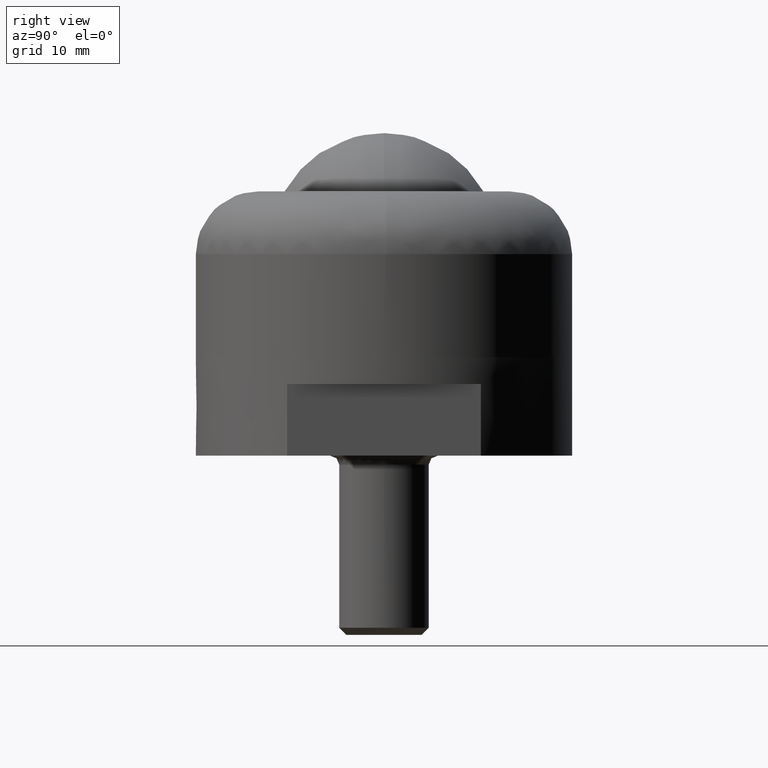
[diagram: clean part render]
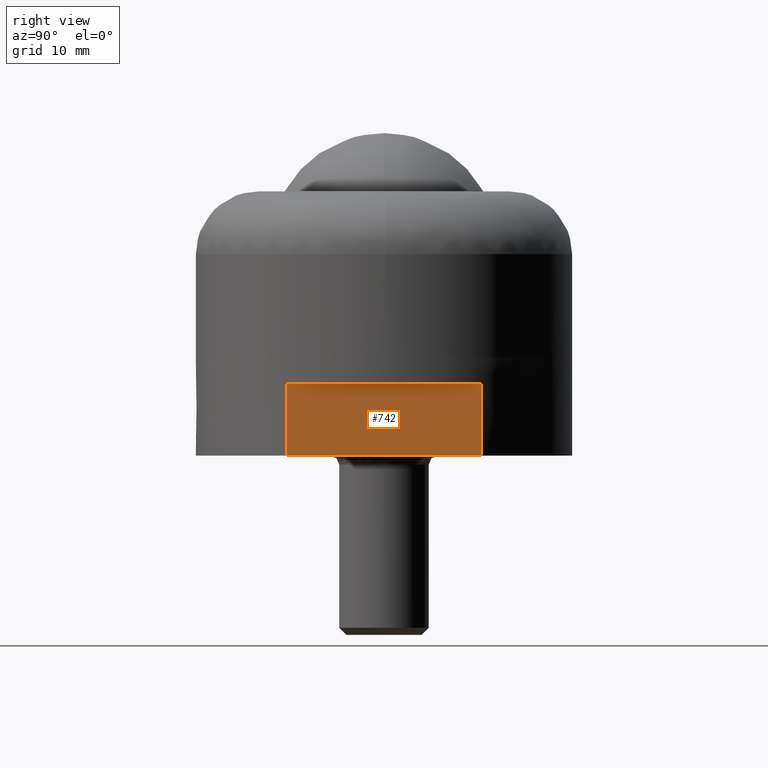
[diagram: same view with one face highlighted and labeled with its STEP entity id]
A machine part, right view. The second image highlights one B-rep face of the part: STEP entity #742.
In plain terms, the highlighted face is a freeform B-spline surface patch.
Its self-contained STEP definition (entity closure, byte-faithful):
#646=CARTESIAN_POINT('',(18.0,10.816653826392120,-11.0));
#647=VERTEX_POINT('',#646);
#667=CARTESIAN_POINT('',(18.0,-10.816653826392100,-11.0));
#668=VERTEX_POINT('',#667);
#669=CARTESIAN_POINT('',(18.0,10.816653826392120,-11.0));
#670=CARTESIAN_POINT('',(18.0,-10.816653826392100,-11.0));
#671=QUASI_UNIFORM_CURVE('',1,(#669,#670),.UNSPECIFIED.,.F.,.U.);
#672=EDGE_CURVE('',#647,#668,#671,.T.);
#715=CARTESIAN_POINT('',(18.0,-11.897237501719131,-2.600400015505436));
#716=CARTESIAN_POINT('',(18.0,-11.897237501719131,-11.399600199071180));
#717=CARTESIAN_POINT('',(18.0,11.897238081969670,-2.600400015505436));
#718=CARTESIAN_POINT('',(18.0,11.897238081969670,-11.399600199071180));
#719=B_SPLINE_SURFACE_WITH_KNOTS('',1,1,((#715,#717),(#716,#718)),.UNSPECIFIED.,.F.,.F.,.U.,(2,2),(2,2),(0.0,8.799200183565739),(0.0,23.794475583688801),.UNSPECIFIED.);
#720=ORIENTED_EDGE('',*,*,#672,.F.);
#721=CARTESIAN_POINT('',(18.0,10.816653826392100,-2.999999999999890));
#722=VERTEX_POINT('',#721);
#723=CARTESIAN_POINT('',(18.0,10.816653826392100,-2.999999999999890));
#724=CARTESIAN_POINT('',(18.0,10.816653826392120,-11.0));
#725=QUASI_UNIFORM_CURVE('',1,(#723,#724),.UNSPECIFIED.,.F.,.U.);
#726=EDGE_CURVE('',#722,#647,#725,.T.);
#727=ORIENTED_EDGE('',*,*,#726,.F.);
#728=CARTESIAN_POINT('',(18.0,-10.816653826392100,-2.999999999999890));
#729=VERTEX_POINT('',#728);
#730=CARTESIAN_POINT('',(18.0,10.816653826392100,-2.999999999999890));
#731=CARTESIAN_POINT('',(18.0,-10.816653826392100,-2.999999999999890));
#732=QUASI_UNIFORM_CURVE('',1,(#730,#731),.UNSPECIFIED.,.F.,.U.);
#733=EDGE_CURVE('',#722,#729,#732,.T.);
#734=ORIENTED_EDGE('',*,*,#733,.T.);
#735=CARTESIAN_POINT('',(18.0,-10.816653826392100,-2.999999999999890));
#736=CARTESIAN_POINT('',(18.0,-10.816653826392100,-11.0));
#737=QUASI_UNIFORM_CURVE('',1,(#735,#736),.UNSPECIFIED.,.F.,.U.);
#738=EDGE_CURVE('',#729,#668,#737,.T.);
#739=ORIENTED_EDGE('',*,*,#738,.T.);
#740=EDGE_LOOP('',(#720,#727,#734,#739));
#741=FACE_OUTER_BOUND('',#740,.T.);
#742=ADVANCED_FACE('',(#741),#719,.T.);